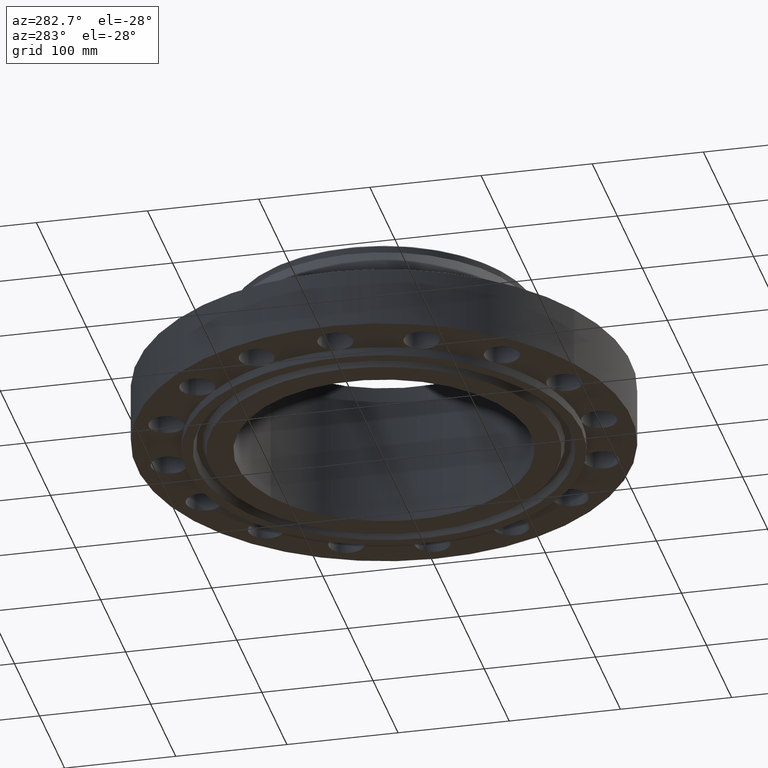
[diagram: clean part render]
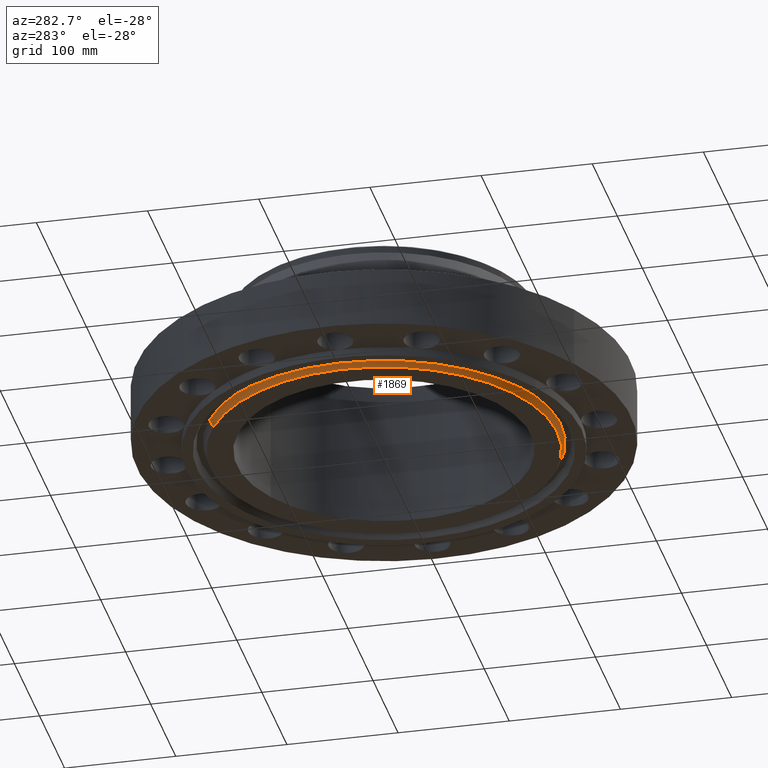
[diagram: same view with one face highlighted and labeled with its STEP entity id]
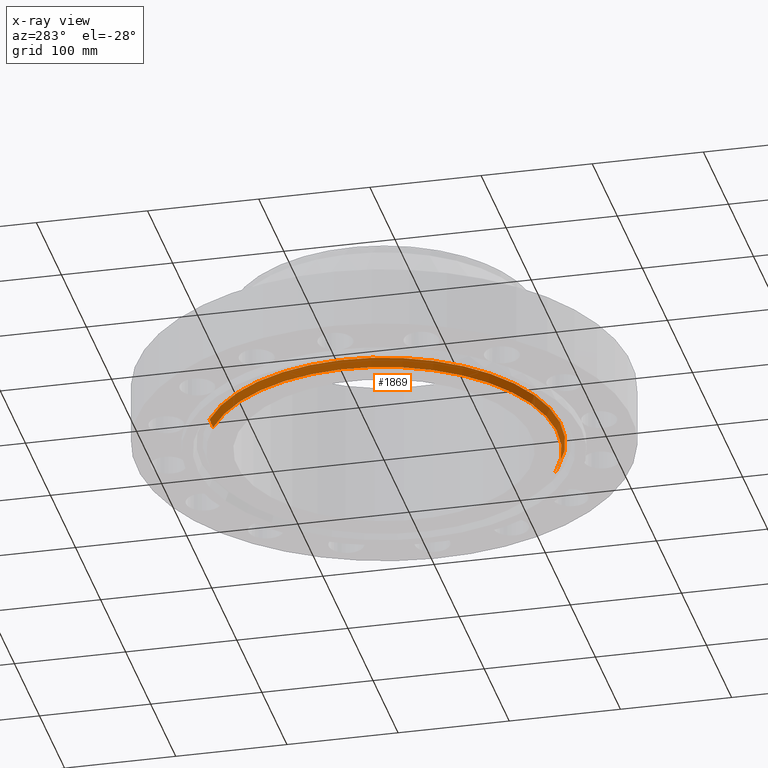
[diagram: x-ray of the same camera — body ghosted, the highlighted face saturated]
A machine part, auxiliary view. The second image highlights one B-rep face of the part: STEP entity #1869.
The next image is the same camera in x-ray: the body ghosted, the highlighted face saturated — about 0% of this face is hidden behind the body in this view.
In plain terms, the highlighted conical surface has half-angle 23 deg.
Its self-contained STEP definition (entity closure, byte-faithful):
#1677=AXIS2_PLACEMENT_3D('Circle Axis2P3D',#1675,#1676,$) ;
#1831=AXIS2_PLACEMENT_3D('Circle Axis2P3D',#1829,#1830,$) ;
#1844=AXIS2_PLACEMENT_3D('Cone Axis2P3D',#1841,#1842,#1843) ;
#1670=CARTESIAN_POINT('Vertex',(-2.94391251981,5.38879572131,-0.313000000001)) ;
#1672=CARTESIAN_POINT('Vertex',(2.94391251981,-5.38879572131,-0.313000000001)) ;
#1675=CARTESIAN_POINT('Axis2P3D Location',(-1.1189649382E-015,0.,-0.313000000001)) ;
#1807=CARTESIAN_POINT('Vertex',(3.0037656434,-5.49835612915,-0.0188873350169)) ;
#1814=CARTESIAN_POINT('Vertex',(-3.0037656434,5.49835612915,-0.0188873350169)) ;
#1829=CARTESIAN_POINT('Axis2P3D Location',(0.,0.,-0.0188873350169)) ;
#1841=CARTESIAN_POINT('Axis2P3D Location',(0.,0.,-0.373000000001)) ;
#1846=CARTESIAN_POINT('Line Origine',(-2.97383908161,5.44357592523,-0.165943667509)) ;
#1851=CARTESIAN_POINT('Line Origine',(2.97383908161,-5.44357592523,-0.165943667509)) ;
#1676=DIRECTION('Axis2P3D Direction',(0.,0.,-0.0393700787402)) ;
#1830=DIRECTION('Axis2P3D Direction',(0.,0.,0.0393700787402)) ;
#1842=DIRECTION('Axis2P3D Direction',(0.,0.,0.0393700787402)) ;
#1843=DIRECTION('Axis2P3D XDirection',(-0.0188750212049,0.0345504945626,0.)) ;
#1847=DIRECTION('Vector Direction',(-0.00737505833565,0.0134999537303,0.0362403485611)) ;
#1852=DIRECTION('Vector Direction',(0.00737505833565,-0.0134999537303,0.0362403485611)) ;
#1848=VECTOR('Line Direction',#1847,0.0393700787402) ;
#1853=VECTOR('Line Direction',#1852,0.0393700787402) ;
#1864=ORIENTED_EDGE('',*,*,#1855,.F.) ;
#1865=ORIENTED_EDGE('',*,*,#1833,.F.) ;
#1866=ORIENTED_EDGE('',*,*,#1850,.T.) ;
#1867=ORIENTED_EDGE('',*,*,#1679,.F.) ;
#1869=ADVANCED_FACE('PartBody',(#1868),#1845,.T.) ;
#1678=CIRCLE('generated circle',#1677,6.14050000002) ;
#1832=CIRCLE('generated circle',#1831,6.26534341944) ;
#1845=CONICAL_SURFACE('Cone',#1844,6.11503151105,0.401425727959) ;
#1679=EDGE_CURVE('',#1673,#1671,#1678,.T.) ;
#1833=EDGE_CURVE('',#1815,#1808,#1832,.T.) ;
#1850=EDGE_CURVE('',#1815,#1671,#1849,.F.) ;
#1855=EDGE_CURVE('',#1808,#1673,#1854,.F.) ;
#1863=EDGE_LOOP('',(#1864,#1865,#1866,#1867)) ;
#1868=FACE_OUTER_BOUND('',#1863,.T.) ;
#1849=LINE('Line',#1846,#1848) ;
#1854=LINE('Line',#1851,#1853) ;
#1671=VERTEX_POINT('',#1670) ;
#1673=VERTEX_POINT('',#1672) ;
#1808=VERTEX_POINT('',#1807) ;
#1815=VERTEX_POINT('',#1814) ;